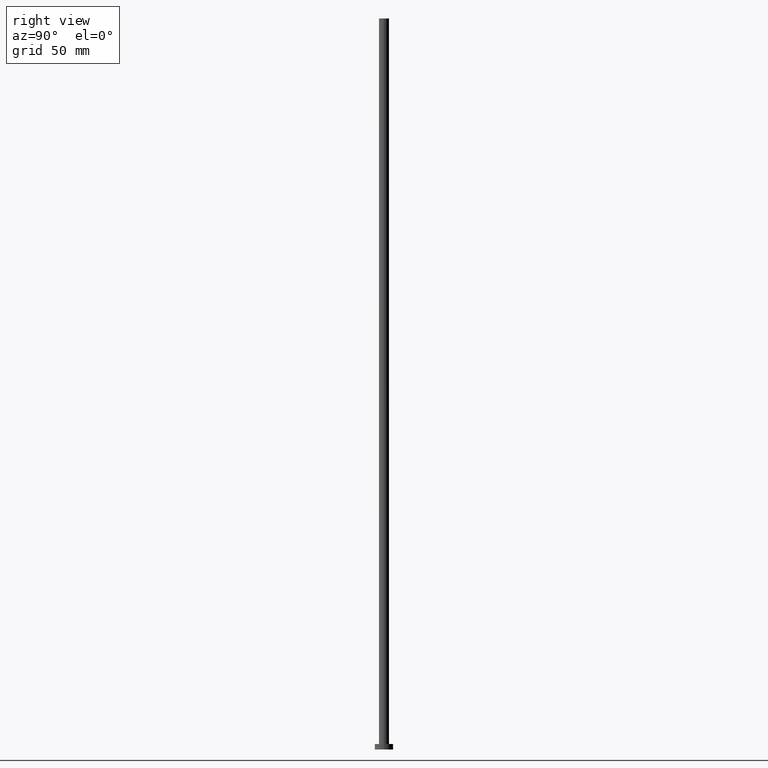
[diagram: clean part render]
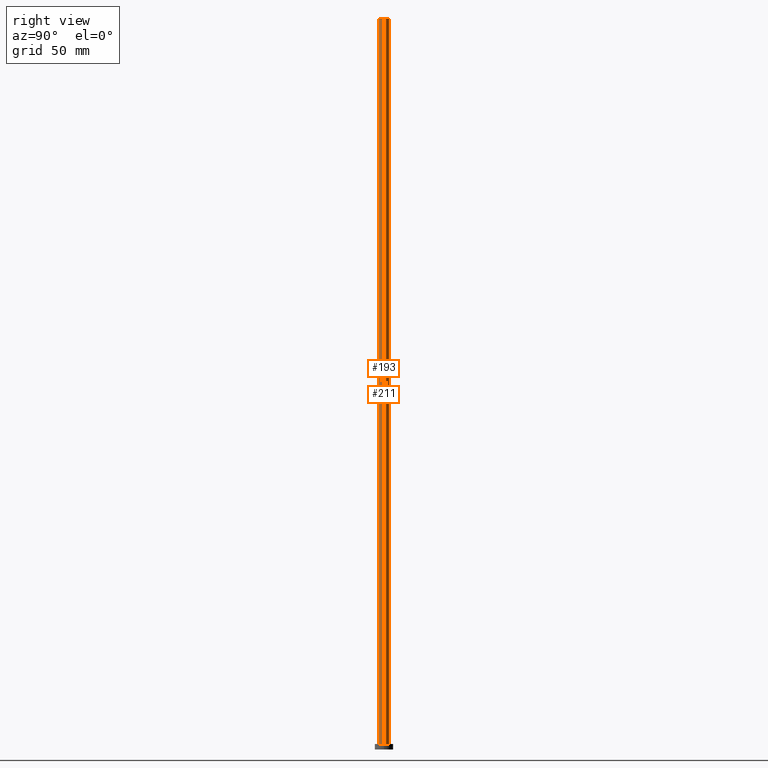
[diagram: same view with one multi-face feature highlighted, each face labeled with its STEP entity id]
A machine part, right view. The highlighted faces form ONE feature: a constant-radius fillet chain: 2 tangent blend faces with common blend radius 2.75 mm. The faces share edges in the B-rep.
Their STEP definitions:
[1] entity #193 (Cylinder):
#2 = EDGE_CURVE ( 'NONE', #207, #235, #219, .T. ) ;
#3 = LINE ( 'NONE', #237, #63 ) ;
#4 = DIRECTION ( 'NONE',  ( -1.000000000000000000, 0.000000000000000000, 0.000000000000000000 ) ) ;
#5 = DIRECTION ( 'NONE',  ( -0.000000000000000000, -0.000000000000000000, -1.000000000000000000 ) ) ;
#10 = VERTEX_POINT ( 'NONE', #246 ) ;
#19 = DIRECTION ( 'NONE',  ( -0.000000000000000000, -0.000000000000000000, -1.000000000000000000 ) ) ;
#27 = CIRCLE ( 'NONE', #87, 2.750000000000000000 ) ;
#37 = DIRECTION ( 'NONE',  ( -0.000000000000000000, -0.000000000000000000, -1.000000000000000000 ) ) ;
#45 = DIRECTION ( 'NONE',  ( 0.000000000000000000, 0.000000000000000000, 1.000000000000000000 ) ) ;
#49 = ORIENTED_EDGE ( 'NONE', *, *, #222, .F. ) ;
#53 = CARTESIAN_POINT ( 'NONE',  ( 0.000000000000000000, 0.000000000000000000, 400.0000000000000000 ) ) ;
#63 = VECTOR ( 'NONE', #5, 1000.000000000000000 ) ;
#66 = ORIENTED_EDGE ( 'NONE', *, *, #2, .T. ) ;
#67 = EDGE_LOOP ( 'NONE', ( #49, #159, #162, #66 ) ) ;
#68 = VECTOR ( 'NONE', #19, 1000.000000000000000 ) ;
#82 = AXIS2_PLACEMENT_3D ( 'NONE', #126, #210, #144 ) ;
#87 = AXIS2_PLACEMENT_3D ( 'NONE', #232, #45, #255 ) ;
#90 = EDGE_CURVE ( 'NONE', #10, #229, #27, .T. ) ;
#126 = CARTESIAN_POINT ( 'NONE',  ( 0.000000000000000000, 0.000000000000000000, 3.000000000000000000 ) ) ;
#144 = DIRECTION ( 'NONE',  ( 1.000000000000000000, 0.000000000000000000, 0.000000000000000000 ) ) ;
#155 = CARTESIAN_POINT ( 'NONE',  ( 2.750000000000000000, 3.367778697655221012E-16, 3.000000000000000000 ) ) ;
#159 = ORIENTED_EDGE ( 'NONE', *, *, #90, .F. ) ;
#162 = ORIENTED_EDGE ( 'NONE', *, *, #230, .T. ) ;
#173 = CARTESIAN_POINT ( 'NONE',  ( 2.750000000000000000, 3.367778697655221012E-16, 400.0000000000000000 ) ) ;
#174 = FACE_OUTER_BOUND ( 'NONE', #67, .T. ) ;
#175 = AXIS2_PLACEMENT_3D ( 'NONE', #53, #37, #4 ) ;
#176 = CARTESIAN_POINT ( 'NONE',  ( 2.750000000000000000, 3.367778697655221012E-16, 400.0000000000000000 ) ) ;
#178 = CYLINDRICAL_SURFACE ( 'NONE', #175, 2.750000000000000000 ) ;
#193 = ADVANCED_FACE ( 'NONE', ( #174 ), #178, .T. ) ;
#199 = LINE ( 'NONE', #173, #68 ) ;
#207 = VERTEX_POINT ( 'NONE', #216 ) ;
#210 = DIRECTION ( 'NONE',  ( 0.000000000000000000, 0.000000000000000000, 1.000000000000000000 ) ) ;
#216 = CARTESIAN_POINT ( 'NONE',  ( -2.750000000000000000, 0.000000000000000000, 3.000000000000000000 ) ) ;
#219 = CIRCLE ( 'NONE', #82, 2.750000000000000000 ) ;
#222 = EDGE_CURVE ( 'NONE', #229, #235, #199, .T. ) ;
#229 = VERTEX_POINT ( 'NONE', #176 ) ;
#230 = EDGE_CURVE ( 'NONE', #10, #207, #3, .T. ) ;
#232 = CARTESIAN_POINT ( 'NONE',  ( 0.000000000000000000, 0.000000000000000000, 400.0000000000000000 ) ) ;
#235 = VERTEX_POINT ( 'NONE', #155 ) ;
#237 = CARTESIAN_POINT ( 'NONE',  ( -2.750000000000000000, 0.000000000000000000, 400.0000000000000000 ) ) ;
#246 = CARTESIAN_POINT ( 'NONE',  ( -2.750000000000000000, 0.000000000000000000, 400.0000000000000000 ) ) ;
#255 = DIRECTION ( 'NONE',  ( 1.000000000000000000, 0.000000000000000000, 0.000000000000000000 ) ) ;
[2] entity #211 (Cylinder):
#3 = LINE ( 'NONE', #237, #63 ) ;
#5 = DIRECTION ( 'NONE',  ( -0.000000000000000000, -0.000000000000000000, -1.000000000000000000 ) ) ;
#10 = VERTEX_POINT ( 'NONE', #246 ) ;
#15 = ORIENTED_EDGE ( 'NONE', *, *, #222, .T. ) ;
#18 = DIRECTION ( 'NONE',  ( 0.000000000000000000, 0.000000000000000000, 1.000000000000000000 ) ) ;
#19 = DIRECTION ( 'NONE',  ( -0.000000000000000000, -0.000000000000000000, -1.000000000000000000 ) ) ;
#20 = FACE_OUTER_BOUND ( 'NONE', #108, .T. ) ;
#38 = DIRECTION ( 'NONE',  ( 0.000000000000000000, 0.000000000000000000, 1.000000000000000000 ) ) ;
#39 = DIRECTION ( 'NONE',  ( 1.000000000000000000, 0.000000000000000000, 0.000000000000000000 ) ) ;
#52 = CARTESIAN_POINT ( 'NONE',  ( 0.000000000000000000, 0.000000000000000000, 400.0000000000000000 ) ) ;
#63 = VECTOR ( 'NONE', #5, 1000.000000000000000 ) ;
#68 = VECTOR ( 'NONE', #19, 1000.000000000000000 ) ;
#74 = DIRECTION ( 'NONE',  ( -1.000000000000000000, 0.000000000000000000, 0.000000000000000000 ) ) ;
#75 = AXIS2_PLACEMENT_3D ( 'NONE', #52, #93, #74 ) ;
#93 = DIRECTION ( 'NONE',  ( -0.000000000000000000, -0.000000000000000000, -1.000000000000000000 ) ) ;
#94 = CARTESIAN_POINT ( 'NONE',  ( 0.000000000000000000, 0.000000000000000000, 3.000000000000000000 ) ) ;
#108 = EDGE_LOOP ( 'NONE', ( #208, #15, #186, #141 ) ) ;
#111 = CIRCLE ( 'NONE', #124, 2.750000000000000000 ) ;
#117 = CARTESIAN_POINT ( 'NONE',  ( 0.000000000000000000, 0.000000000000000000, 400.0000000000000000 ) ) ;
#124 = AXIS2_PLACEMENT_3D ( 'NONE', #117, #38, #39 ) ;
#141 = ORIENTED_EDGE ( 'NONE', *, *, #230, .F. ) ;
#155 = CARTESIAN_POINT ( 'NONE',  ( 2.750000000000000000, 3.367778697655221012E-16, 3.000000000000000000 ) ) ;
#172 = CYLINDRICAL_SURFACE ( 'NONE', #75, 2.750000000000000000 ) ;
#173 = CARTESIAN_POINT ( 'NONE',  ( 2.750000000000000000, 3.367778697655221012E-16, 400.0000000000000000 ) ) ;
#176 = CARTESIAN_POINT ( 'NONE',  ( 2.750000000000000000, 3.367778697655221012E-16, 400.0000000000000000 ) ) ;
#181 = AXIS2_PLACEMENT_3D ( 'NONE', #94, #18, #196 ) ;
#186 = ORIENTED_EDGE ( 'NONE', *, *, #188, .T. ) ;
#188 = EDGE_CURVE ( 'NONE', #235, #207, #218, .T. ) ;
#192 = EDGE_CURVE ( 'NONE', #229, #10, #111, .T. ) ;
#196 = DIRECTION ( 'NONE',  ( 1.000000000000000000, 0.000000000000000000, 0.000000000000000000 ) ) ;
#199 = LINE ( 'NONE', #173, #68 ) ;
#207 = VERTEX_POINT ( 'NONE', #216 ) ;
#208 = ORIENTED_EDGE ( 'NONE', *, *, #192, .F. ) ;
#211 = ADVANCED_FACE ( 'NONE', ( #20 ), #172, .T. ) ;
#216 = CARTESIAN_POINT ( 'NONE',  ( -2.750000000000000000, 0.000000000000000000, 3.000000000000000000 ) ) ;
#218 = CIRCLE ( 'NONE', #181, 2.750000000000000000 ) ;
#222 = EDGE_CURVE ( 'NONE', #229, #235, #199, .T. ) ;
#229 = VERTEX_POINT ( 'NONE', #176 ) ;
#230 = EDGE_CURVE ( 'NONE', #10, #207, #3, .T. ) ;
#235 = VERTEX_POINT ( 'NONE', #155 ) ;
#237 = CARTESIAN_POINT ( 'NONE',  ( -2.750000000000000000, 0.000000000000000000, 400.0000000000000000 ) ) ;
#246 = CARTESIAN_POINT ( 'NONE',  ( -2.750000000000000000, 0.000000000000000000, 400.0000000000000000 ) ) ;